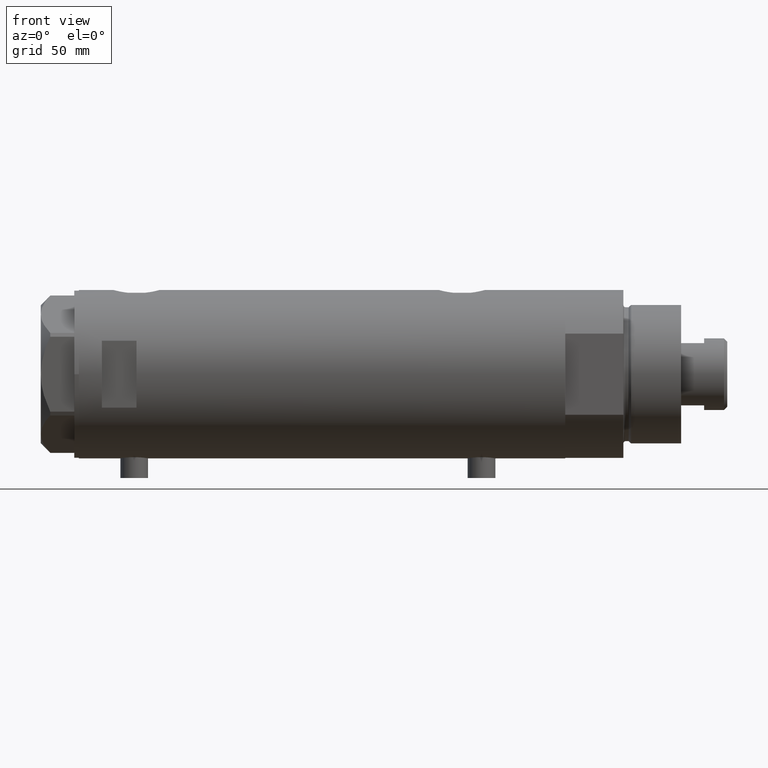
[diagram: clean part render]
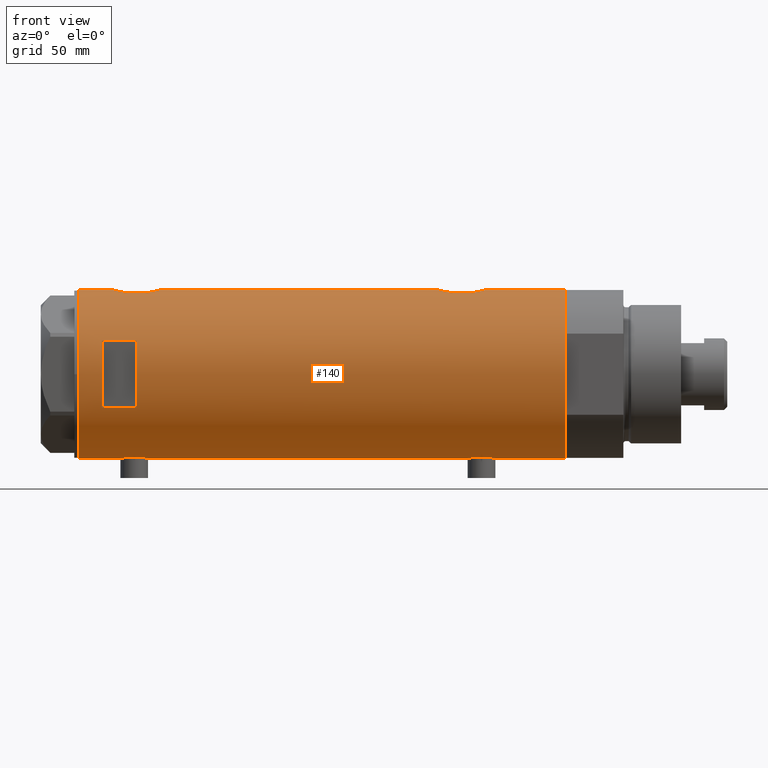
[diagram: same view with one face highlighted and labeled with its STEP entity id]
A machine part, front view. The second image highlights one B-rep face of the part: STEP entity #140.
In plain terms, the highlighted cylindrical surface (partial cylindrical patch) has radius 36.5 mm, axis along (-1, -0, 0).
Its self-contained STEP definition (entity closure, byte-faithful):
#2 = CARTESIAN_POINT ( 'NONE',  ( 35.39807338191550912, -8.909271871950332766, 85.05080382732786859 ) ) ;
#17 = VECTOR ( 'NONE', #2982, 1000.000000000000000 ) ;
#19 = CARTESIAN_POINT ( 'NONE',  ( 36.18850502651835654, -4.779575967213801846, -69.39779152890153568 ) ) ;
#23 = CARTESIAN_POINT ( 'NONE',  ( -36.49297138689433240, -0.8222528563518511913, 87.60933112053437810 ) ) ;
#28 = CARTESIAN_POINT ( 'NONE',  ( 36.09633718678917802, -5.417295330713079338, 88.80914867345211405 ) ) ;
#53 = CARTESIAN_POINT ( 'NONE',  ( 36.50000000000000000, 0.000000000000000000, 70.40000000000000568 ) ) ;
#72 = CARTESIAN_POINT ( 'NONE',  ( -36.30107494031872761, -3.820993528321232624, -64.13693846463692694 ) ) ;
#96 = CARTESIAN_POINT ( 'NONE',  ( -36.01675918113429020, -5.920026275461276910, -71.11439556517890992 ) ) ;
#122 = CARTESIAN_POINT ( 'NONE',  ( -36.40915499150419521, -2.580495338846545472, -74.79605013355477183 ) ) ;
#125 = CARTESIAN_POINT ( 'NONE',  ( 36.50000000000000000, 4.344614706140975428E-19, 90.39999999999999147 ) ) ;
#135 = CARTESIAN_POINT ( 'NONE',  ( 36.50000000000000000, 0.000000000000000000, 70.40000000000000568 ) ) ;
#140 = ADVANCED_FACE ( 'NONE', ( #3667, #4324 ), #2621, .T. ) ;
#150 = AXIS2_PLACEMENT_3D ( 'NONE', #2040, #357, #3752 ) ;
#157 = CARTESIAN_POINT ( 'NONE',  ( 35.72742963626382107, -7.471989379615396665, -67.25062260412778414 ) ) ;
#163 = CARTESIAN_POINT ( 'NONE',  ( -36.36656776002988067, -3.137002187003158582, 86.82136409273630306 ) ) ;
#173 = CARTESIAN_POINT ( 'NONE',  ( 36.50000000000000000, 0.000000000000000000, -105.4000000000000057 ) ) ;
#175 = CARTESIAN_POINT ( 'NONE',  ( 35.29999999999999716, -9.282241108697837362, 84.12021504754763157 ) ) ;
#179 = VERTEX_POINT ( 'NONE', #175 ) ;
#181 = VERTEX_POINT ( 'NONE', #1266 ) ;
#193 = CARTESIAN_POINT ( 'NONE',  ( -36.36635911126388976, -3.125815113635436404, 75.98394399592095283 ) ) ;
#211 = CARTESIAN_POINT ( 'NONE',  ( 35.93363298843768661, -6.415574104180961967, 72.71348527111108240 ) ) ;
#219 = CARTESIAN_POINT ( 'NONE',  ( 35.29999999999999716, -9.282241108697832033, -64.32021504754764862 ) ) ;
#230 = CARTESIAN_POINT ( 'NONE',  ( 0.000000000000000000, 0.000000000000000000, 95.40000000000001990 ) ) ;
#235 = CARTESIAN_POINT ( 'NONE',  ( 35.72583162417570435, -7.484316398521970726, -53.94957356280497862 ) ) ;
#238 = LINE ( 'NONE', #959, #3728 ) ;
#239 = CARTESIAN_POINT ( 'NONE',  ( -36.14410773716529235, -5.085921866747742826, 85.03835878420473193 ) ) ;
#311 = CARTESIAN_POINT ( 'NONE',  ( 36.44881677724179525, -1.995085670027224367, -70.41180345369464533 ) ) ;
#327 = EDGE_CURVE ( 'NONE', #2791, #2019, #3985, .T. ) ;
#346 = ORIENTED_EDGE ( 'NONE', *, *, #1277, .F. ) ;
#357 = DIRECTION ( 'NONE',  ( -0.000000000000000000, -4.625929269271492422E-15, 1.000000000000000000 ) ) ;
#372 = CARTESIAN_POINT ( 'NONE',  ( 35.83108131285855791, -6.958268797611344425, -67.78630783372827295 ) ) ;
#377 = VERTEX_POINT ( 'NONE', #3734 ) ;
#402 = CARTESIAN_POINT ( 'NONE',  ( 36.34247810649306842, -3.420510937483958624, 89.80986518401728347 ) ) ;
#407 = VERTEX_POINT ( 'NONE', #818 ) ;
#414 = CARTESIAN_POINT ( 'NONE',  ( 36.50000000000000000, 0.000000000000000000, -105.4000000000000057 ) ) ;
#440 = CARTESIAN_POINT ( 'NONE',  ( 35.52320828895290816, -8.411622242316136422, 74.90227134055386671 ) ) ;
#445 = CARTESIAN_POINT ( 'NONE',  ( -36.44454782745417276, -2.020757099930496903, -63.18214135579003710 ) ) ;
#467 = ORIENTED_EDGE ( 'NONE', *, *, #2245, .T. ) ;
#486 = CARTESIAN_POINT ( 'NONE',  ( 0.000000000000000000, 0.000000000000000000, -105.4000000000000057 ) ) ;
#487 = DIRECTION ( 'NONE',  ( 0.000000000000000000, 0.000000000000000000, 1.000000000000000000 ) ) ;
#491 = CARTESIAN_POINT ( 'NONE',  ( 36.50000000000000000, -0.5031001875915696031, 70.40000000000000568 ) ) ;
#498 = CARTESIAN_POINT ( 'NONE',  ( -35.99695583620882644, -6.039273428153906664, -70.72224444987757863 ) ) ;
#514 = CARTESIAN_POINT ( 'NONE',  ( 36.48960339336945680, -1.002724032967599488, 70.43775134026503792 ) ) ;
#515 = CARTESIAN_POINT ( 'NONE',  ( -36.02823773219769521, -5.849994928883552880, 79.19044898514358977 ) ) ;
#530 = AXIS2_PLACEMENT_3D ( 'NONE', #486, #1129, #2514 ) ;
#543 = CARTESIAN_POINT ( 'NONE',  ( 35.79656810172927806, -7.133411935499470502, 73.38745121442323693 ) ) ;
#565 = EDGE_CURVE ( 'NONE', #670, #2922, #4482, .T. ) ;
#579 = CARTESIAN_POINT ( 'NONE',  ( -36.49297138689433950, -0.8222528563518539668, -62.89066887946567874 ) ) ;
#601 = CARTESIAN_POINT ( 'NONE',  ( -35.96087392089863499, -6.250243747806518257, 81.80917490776184309 ) ) ;
#605 = CARTESIAN_POINT ( 'NONE',  ( -36.47262891311152799, -1.427622242603856506, -63.01175370788300256 ) ) ;
#622 = CARTESIAN_POINT ( 'NONE',  ( -36.19599073318030236, -4.702920041824403263, 85.52153831676578477 ) ) ;
#639 = CARTESIAN_POINT ( 'NONE',  ( 36.50000000000000000, 0.000000000000000000, -70.59999999999999432 ) ) ;
#644 = CARTESIAN_POINT ( 'NONE',  ( 35.52320828895290816, -8.411622242316138198, -66.09772865944611908 ) ) ;
#663 = CARTESIAN_POINT ( 'NONE',  ( 35.93363298843767240, -6.415574104180961079, -68.28651472888893181 ) ) ;
#670 = VERTEX_POINT ( 'NONE', #219 ) ;
#673 = VERTEX_POINT ( 'NONE', #3666 ) ;
#688 = CARTESIAN_POINT ( 'NONE',  ( 35.29999999999999716, -9.282241108697832033, 76.67978495245235138 ) ) ;
#702 = EDGE_CURVE ( 'NONE', #2662, #2922, #1519, .T. ) ;
#733 = DIRECTION ( 'NONE',  ( 0.000000000000000000, 0.000000000000000000, 1.000000000000000000 ) ) ;
#764 = CIRCLE ( 'NONE', #150, 36.50000000000000000 ) ;
#804 = CARTESIAN_POINT ( 'NONE',  ( -36.46614432713123222, -1.622933015999965090, -75.14966597386846558 ) ) ;
#818 = CARTESIAN_POINT ( 'NONE',  ( 35.29999999999999716, -9.282241108697837362, -56.87978495245236843 ) ) ;
#821 = CARTESIAN_POINT ( 'NONE',  ( -35.99659093586380010, -6.041447834568798747, -67.48577587985177217 ) ) ;
#826 = ORIENTED_EDGE ( 'NONE', *, *, #1629, .F. ) ;
#845 = ORIENTED_EDGE ( 'NONE', *, *, #2087, .F. ) ;
#869 = CARTESIAN_POINT ( 'NONE',  ( 36.44881677724178815, -1.995085670027225255, 70.58819654630536888 ) ) ;
#885 = CARTESIAN_POINT ( 'NONE',  ( 35.29999999999999716, -9.282241108697837362, -56.87978495245236843 ) ) ;
#911 = CARTESIAN_POINT ( 'NONE',  ( -36.06605150775666857, -5.613853192123346325, 78.62234311727455349 ) ) ;
#923 = EDGE_LOOP ( 'NONE', ( #3412, #467, #1530, #972, #1810, #3555, #3650, #346, #2226, #4451, #3774, #4435, #1319, #2250, #2686, #826 ) ) ;
#931 = CARTESIAN_POINT ( 'NONE',  ( 35.29999999999999716, -9.282241108697835585, -105.4000000000000057 ) ) ;
#940 = CARTESIAN_POINT ( 'NONE',  ( -36.40915499150420231, -2.580495338846545472, 75.70394986644525659 ) ) ;
#959 = CARTESIAN_POINT ( 'NONE',  ( 14.49137674618942562, -33.50000000000000000, -105.4000000000000057 ) ) ;
#963 = CARTESIAN_POINT ( 'NONE',  ( -36.09514898390870030, -5.426114745500156822, 84.52838652946140030 ) ) ;
#972 = ORIENTED_EDGE ( 'NONE', *, *, #565, .F. ) ;
#984 = CARTESIAN_POINT ( 'NONE',  ( -36.39558535855675103, -2.764807686268001330, 75.79105881454391636 ) ) ;
#987 = CARTESIAN_POINT ( 'NONE',  ( 14.49137674618942739, -33.50000000000000000, 95.40000000000001990 ) ) ;
#1076 = CARTESIAN_POINT ( 'NONE',  ( -36.47262891311152089, -1.427622242603850955, 87.48824629211701165 ) ) ;
#1080 = CARTESIAN_POINT ( 'NONE',  ( 35.29999999999999716, -9.282241108697837362, 84.12021504754763157 ) ) ;
#1089 = LINE ( 'NONE', #414, #3554 ) ;
#1091 = CARTESIAN_POINT ( 'NONE',  ( 36.34184199234172041, -3.427106516421252635, -70.00740913680033373 ) ) ;
#1125 = AXIS2_PLACEMENT_3D ( 'NONE', #2858, #4330, #3981 ) ;
#1129 = DIRECTION ( 'NONE',  ( 0.000000000000000000, 0.000000000000000000, 1.000000000000000000 ) ) ;
#1136 = CARTESIAN_POINT ( 'NONE',  ( 36.12724769814494152, -5.207618053557752980, 88.94064120488462777 ) ) ;
#1142 = CARTESIAN_POINT ( 'NONE',  ( -36.39621039793028956, -2.776267550998802847, -63.48569246893222129 ) ) ;
#1155 = CARTESIAN_POINT ( 'NONE',  ( -14.49137674618942562, -33.50000000000000000, -105.4000000000000057 ) ) ;
#1182 = CARTESIAN_POINT ( 'NONE',  ( 35.29999999999999716, -9.282241108697835585, -105.4000000000000057 ) ) ;
#1186 = CARTESIAN_POINT ( 'NONE',  ( -36.14410773716529235, -5.085921866747752595, -65.46164121579531070 ) ) ;
#1190 = CARTESIAN_POINT ( 'NONE',  ( -36.50000000000000000, 1.407447864834978200E-15, 87.65000000000000568 ) ) ;
#1192 = EDGE_CURVE ( 'NONE', #377, #3720, #1447, .T. ) ;
#1207 = CARTESIAN_POINT ( 'NONE',  ( 36.21540437201188922, -4.554727782332259167, -51.69402370911375755 ) ) ;
#1215 = CARTESIAN_POINT ( 'NONE',  ( -36.30176144752230982, -3.814344296723638728, -74.06801701950256245 ) ) ;
#1228 = DIRECTION ( 'NONE',  ( 0.000000000000000000, 0.000000000000000000, 1.000000000000000000 ) ) ;
#1233 = CARTESIAN_POINT ( 'NONE',  ( 36.41918031349423757, -2.473644131148925673, -50.89811654536808305 ) ) ;
#1237 = CARTESIAN_POINT ( 'NONE',  ( -35.98821803976956346, -6.090959022952118218, 82.81573883149420112 ) ) ;
#1241 = CARTESIAN_POINT ( 'NONE',  ( -36.19599073318029525, -4.702920041824404151, -64.97846168323422944 ) ) ;
#1258 = EDGE_CURVE ( 'NONE', #3858, #179, #2641, .T. ) ;
#1266 = CARTESIAN_POINT ( 'NONE',  ( -36.50000000000000000, 4.469960816887837641E-15, -105.4000000000000057 ) ) ;
#1277 = EDGE_CURVE ( 'NONE', #2129, #3014, #2427, .T. ) ;
#1279 = CARTESIAN_POINT ( 'NONE',  ( 35.69273631926343171, -7.635692914629146344, 73.93799804348510918 ) ) ;
#1281 = CARTESIAN_POINT ( 'NONE',  ( -35.99695583620881223, -6.039273428153904888, 79.77775555012243558 ) ) ;
#1284 = CARTESIAN_POINT ( 'NONE',  ( -36.50000000000000000, 4.469960493350315609E-15, -75.35000000000000853 ) ) ;
#1286 = VECTOR ( 'NONE', #2151, 1000.000000000000000 ) ;
#1301 = B_SPLINE_CURVE_WITH_KNOTS ( 'NONE', 3,
 ( #2635, #1578, #2223, #4310, #1233, #3612, #2937, #1207, #2886, #2296, #3965, #4284, #4349, #2986, #235, #3629, #1618, #885 ),
 .UNSPECIFIED., .F., .F.,
 ( 4, 2, 2, 2, 2, 2, 2, 2, 4 ),
 ( 0.01190956515753145185, 0.01339852714138290921, 0.01488748912523436482, 0.01637645110908582391, 0.01712093210101154825, 0.01786541309293727259, 0.01935437507678870739, 0.02084333706064014219, 0.02382126102834301873 ),
 .UNSPECIFIED. ) ;
#1307 = CARTESIAN_POINT ( 'NONE',  ( -36.16125812922425098, -4.962923794285023504, 85.20446085910759848 ) ) ;
#1313 = VERTEX_POINT ( 'NONE', #3922 ) ;
#1319 = ORIENTED_EDGE ( 'NONE', *, *, #3156, .F. ) ;
#1396 = VERTEX_POINT ( 'NONE', #2993 ) ;
#1404 = CARTESIAN_POINT ( 'NONE',  ( 36.41856252531823657, -2.482507212621166026, -70.29956512846504779 ) ) ;
#1409 = LINE ( 'NONE', #2489, #1286 ) ;
#1431 = CARTESIAN_POINT ( 'NONE',  ( 35.72583162417569724, -7.484316398521979607, 87.05042643719500006 ) ) ;
#1447 = LINE ( 'NONE', #1155, #2358 ) ;
#1475 = DIRECTION ( 'NONE',  ( 0.000000000000000000, 0.000000000000000000, 1.000000000000000000 ) ) ;
#1495 = CARTESIAN_POINT ( 'NONE',  ( -36.39558535855672972, -2.764807686268001774, -74.70894118545611207 ) ) ;
#1503 = LINE ( 'NONE', #2532, #2416 ) ;
#1512 = CARTESIAN_POINT ( 'NONE',  ( -35.96794010939611752, -6.209972807992079069, -68.28444451008647320 ) ) ;
#1519 = LINE ( 'NONE', #173, #4014 ) ;
#1530 = ORIENTED_EDGE ( 'NONE', *, *, #702, .T. ) ;
#1542 = EDGE_CURVE ( 'NONE', #1313, #3014, #1089, .T. ) ;
#1543 = DIRECTION ( 'NONE',  ( 0.000000000000000000, 0.000000000000000000, 1.000000000000000000 ) ) ;
#1554 = VECTOR ( 'NONE', #2111, 1000.000000000000000 ) ;
#1556 = CARTESIAN_POINT ( 'NONE',  ( 36.34184199234172041, -3.427106516421252635, 70.99259086319966627 ) ) ;
#1566 = DIRECTION ( 'NONE',  ( 0.000000000000000000, 0.000000000000000000, 1.000000000000000000 ) ) ;
#1578 = CARTESIAN_POINT ( 'NONE',  ( 36.50000000000000000, -0.4962708696651109141, -50.60000000000000853 ) ) ;
#1581 = CARTESIAN_POINT ( 'NONE',  ( -36.01675918113430441, -5.920026275461276910, 79.38560443482106166 ) ) ;
#1600 = CARTESIAN_POINT ( 'NONE',  ( -36.49315367594273596, -0.8144497809045445624, 75.18960214445246493 ) ) ;
#1618 = CARTESIAN_POINT ( 'NONE',  ( 35.39807338191550912, -8.909271871950334543, -55.94919617267213852 ) ) ;
#1629 = EDGE_CURVE ( 'NONE', #3673, #673, #3873, .T. ) ;
#1644 = CARTESIAN_POINT ( 'NONE',  ( -36.26616882068469749, -4.135065845178862887, 86.10415055940092088 ) ) ;
#1737 = CARTESIAN_POINT ( 'NONE',  ( 36.48960339336945680, -1.002724032967600598, -70.56224865973496208 ) ) ;
#1744 = CIRCLE ( 'NONE', #530, 36.50000000000000000 ) ;
#1772 = CARTESIAN_POINT ( 'NONE',  ( 36.29582892817134621, -3.881628320031161650, 89.62934434534990658 ) ) ;
#1793 = CARTESIAN_POINT ( 'NONE',  ( -36.09582946723050867, -5.421573071064194060, -72.23608278370490154 ) ) ;
#1810 = ORIENTED_EDGE ( 'NONE', *, *, #3460, .T. ) ;
#1811 = LINE ( 'NONE', #1182, #1554 ) ;
#1816 = CARTESIAN_POINT ( 'NONE',  ( -36.46417279006303858, -1.628689148039111245, -63.06246061306185169 ) ) ;
#1843 = CARTESIAN_POINT ( 'NONE',  ( -36.49315367594275017, -0.8144497809045466719, -75.31039785554756349 ) ) ;
#1851 = LINE ( 'NONE', #3675, #17 ) ;
#1859 = CARTESIAN_POINT ( 'NONE',  ( 36.18850502651836365, -4.779575967213802734, 71.60220847109845010 ) ) ;
#1865 = CARTESIAN_POINT ( 'NONE',  ( -35.96095902952617251, -6.249754054240902690, -69.51658765420471298 ) ) ;
#1883 = CARTESIAN_POINT ( 'NONE',  ( -36.30107494031871340, -3.820993528321230848, 86.36306153536308727 ) ) ;
#1887 = CARTESIAN_POINT ( 'NONE',  ( -36.16125812922422966, -4.962923794285019952, -65.29553914089238731 ) ) ;
#1904 = LINE ( 'NONE', #931, #3272 ) ;
#1910 = CARTESIAN_POINT ( 'NONE',  ( -36.46614432713122511, -1.622933015999963535, 75.35033402613152020 ) ) ;
#1957 = CARTESIAN_POINT ( 'NONE',  ( -36.06543684817881257, -5.617774235967358365, 84.16954447971703246 ) ) ;
#1970 = DIRECTION ( 'NONE',  ( 0.000000000000000000, 0.000000000000000000, 1.000000000000000000 ) ) ;
#1979 = CARTESIAN_POINT ( 'NONE',  ( -36.50000000000000000, 4.469960493350315609E-15, 75.14999999999999147 ) ) ;
#2019 = VERTEX_POINT ( 'NONE', #1190 ) ;
#2040 = CARTESIAN_POINT ( 'NONE',  ( 0.000000000000000000, 0.000000000000000000, 80.40000000000017621 ) ) ;
#2087 = EDGE_CURVE ( 'NONE', #3720, #4461, #764, .T. ) ;
#2089 = CARTESIAN_POINT ( 'NONE',  ( 35.29999999999999716, -9.282241108697832033, 76.67978495245235138 ) ) ;
#2111 = DIRECTION ( 'NONE',  ( 0.000000000000000000, 0.000000000000000000, 1.000000000000000000 ) ) ;
#2129 = VERTEX_POINT ( 'NONE', #688 ) ;
#2137 = CARTESIAN_POINT ( 'NONE',  ( -35.98855750525640929, -6.088954600884531665, -70.52430226150165993 ) ) ;
#2151 = DIRECTION ( 'NONE',  ( 0.000000000000000000, 0.000000000000000000, 1.000000000000000000 ) ) ;
#2153 = CARTESIAN_POINT ( 'NONE',  ( 35.39794035667547689, -8.909777761736840773, 75.75045840910546247 ) ) ;
#2158 = CARTESIAN_POINT ( 'NONE',  ( -35.98821803976956346, -6.090959022952116442, -67.68426116850582730 ) ) ;
#2173 = CARTESIAN_POINT ( 'NONE',  ( 36.50000000000002132, -0.4962708696651109141, 90.40000000000001990 ) ) ;
#2223 = CARTESIAN_POINT ( 'NONE',  ( 36.48988302519020976, -0.9927202255321156965, -50.63673010588698986 ) ) ;
#2225 = CARTESIAN_POINT ( 'NONE',  ( 36.12792682573227410, -5.214735277442327899, 71.85306882011298057 ) ) ;
#2226 = ORIENTED_EDGE ( 'NONE', *, *, #4440, .T. ) ;
#2232 = CARTESIAN_POINT ( 'NONE',  ( -35.96087392089863499, -6.250243747806517369, -68.69082509223819955 ) ) ;
#2245 = EDGE_CURVE ( 'NONE', #181, #2662, #1744, .T. ) ;
#2250 = ORIENTED_EDGE ( 'NONE', *, *, #327, .F. ) ;
#2270 = CARTESIAN_POINT ( 'NONE',  ( 35.72742963626382107, -7.471989379615396665, 73.74937739587224428 ) ) ;
#2271 = CARTESIAN_POINT ( 'NONE',  ( -36.01639592019626690, -5.922235714778416593, 83.40796802426915235 ) ) ;
#2283 = DIRECTION ( 'NONE',  ( 1.000000000000000000, 0.000000000000000000, 0.000000000000000000 ) ) ;
#2296 = CARTESIAN_POINT ( 'NONE',  ( 36.12724769814494863, -5.207618053557752091, -52.05935879511539355 ) ) ;
#2299 = CARTESIAN_POINT ( 'NONE',  ( -36.19666146462961365, -4.704890678739094945, 77.26570140489216953 ) ) ;
#2342 = CARTESIAN_POINT ( 'NONE',  ( -36.16096637594733210, -4.968588355849259841, 77.58665507182242038 ) ) ;
#2358 = VECTOR ( 'NONE', #2493, 1000.000000000000000 ) ;
#2363 = CARTESIAN_POINT ( 'NONE',  ( 35.79656810172927806, -7.133411935499470502, -67.61254878557679149 ) ) ;
#2408 = CARTESIAN_POINT ( 'NONE',  ( -36.50000000000000000, -0.4136690418839316097, -62.85000000000000142 ) ) ;
#2412 = CARTESIAN_POINT ( 'NONE',  ( -14.49137674618942739, -33.50000000000000000, 80.40000000000003411 ) ) ;
#2414 = CARTESIAN_POINT ( 'NONE',  ( -36.50000000000000000, 1.407447864834978200E-15, 87.65000000000000568 ) ) ;
#2415 = ORIENTED_EDGE ( 'NONE', *, *, #1192, .F. ) ;
#2416 = VECTOR ( 'NONE', #1228, 1000.000000000000000 ) ;
#2427 = B_SPLINE_CURVE_WITH_KNOTS ( 'NONE', 3,
 ( #2089, #2153, #440, #1279, #2270, #543, #3294, #211, #2863, #2225, #1859, #4018, #1556, #4352, #869, #514, #491, #135 ),
 .UNSPECIFIED., .F., .F.,
 ( 4, 2, 2, 2, 2, 2, 2, 2, 4 ),
 ( -0.01189883390545605317, -0.008924125429092049852, -0.008180448310001047288, -0.007436771190910044724, -0.005949416952728036993, -0.004462062714546029263, -0.002974708476364020665, -0.001487354238182010333, -1.734723475976807094E-18 ),
 .UNSPECIFIED. ) ;
#2437 = CARTESIAN_POINT ( 'NONE',  ( -36.50000000000000000, -0.4136690418839331640, 87.65000000000000568 ) ) ;
#2475 = CARTESIAN_POINT ( 'NONE',  ( 36.48988302519020266, -0.9927202255321175839, 90.36326989411300303 ) ) ;
#2489 = CARTESIAN_POINT ( 'NONE',  ( -36.50000000000000000, 4.469960816887837641E-15, -105.4000000000000057 ) ) ;
#2493 = DIRECTION ( 'NONE',  ( -0.000000000000000000, -0.000000000000000000, -1.000000000000000000 ) ) ;
#2514 = DIRECTION ( 'NONE',  ( 1.000000000000000000, 0.000000000000000000, 0.000000000000000000 ) ) ;
#2520 = CARTESIAN_POINT ( 'NONE',  ( -36.19666146462961365, -4.704890678739095833, -73.23429859510785889 ) ) ;
#2532 = CARTESIAN_POINT ( 'NONE',  ( -36.50000000000000000, 4.469960816887837641E-15, -105.4000000000000057 ) ) ;
#2546 = CIRCLE ( 'NONE', #1125, 36.50000000000000000 ) ;
#2575 = CARTESIAN_POINT ( 'NONE',  ( -36.26692673949092693, -4.128477002029505627, -73.80999987432171849 ) ) ;
#2595 = CARTESIAN_POINT ( 'NONE',  ( -36.26616882068470460, -4.135065845178866439, -64.39584944059907912 ) ) ;
#2610 = CARTESIAN_POINT ( 'NONE',  ( -36.30176144752230982, -3.814344296723637839, 76.43198298049743755 ) ) ;
#2615 = CARTESIAN_POINT ( 'NONE',  ( -36.50000000000000000, -5.849986204104554638E-16, -62.85000000000000142 ) ) ;
#2621 = CYLINDRICAL_SURFACE ( 'NONE', #3065, 36.50000000000000000 ) ;
#2635 = CARTESIAN_POINT ( 'NONE',  ( 36.50000000000000000, 4.344609657431182014E-19, -50.60000000000000853 ) ) ;
#2641 = B_SPLINE_CURVE_WITH_KNOTS ( 'NONE', 3,
 ( #3494, #2173, #2475, #3564, #3519, #402, #1772, #2820, #4225, #1136, #28, #3472, #3105, #3876, #1431, #3539, #2, #1080 ),
 .UNSPECIFIED., .F., .F.,
 ( 4, 2, 2, 2, 2, 2, 2, 2, 4 ),
 ( 0.01190956515753145012, 0.01339852714138288839, 0.01488748912523432666, 0.01637645110908576493, 0.01712093210101148233, 0.01786541309293720320, 0.01935437507678866575, 0.02084333706064012831, 0.02382126102834302220 ),
 .UNSPECIFIED. ) ;
#2662 = VERTEX_POINT ( 'NONE', #2931 ) ;
#2686 = ORIENTED_EDGE ( 'NONE', *, *, #3103, .F. ) ;
#2757 = CARTESIAN_POINT ( 'NONE',  ( 36.50000000000000000, -0.5031001875915691590, -70.59999999999999432 ) ) ;
#2760 = CARTESIAN_POINT ( 'NONE',  ( -36.43335814606992074, -2.212659578761320134, 87.24876399169507124 ) ) ;
#2783 = CARTESIAN_POINT ( 'NONE',  ( 36.50000000000000000, 0.000000000000000000, 105.4000000000000057 ) ) ;
#2791 = VERTEX_POINT ( 'NONE', #4238 ) ;
#2820 = CARTESIAN_POINT ( 'NONE',  ( 36.21540437201187501, -4.554727782332259167, 89.30597629088620693 ) ) ;
#2828 = CARTESIAN_POINT ( 'NONE',  ( -36.36656776002988067, -3.137002187003159914, -63.67863590726370404 ) ) ;
#2831 = VECTOR ( 'NONE', #733, 1000.000000000000000 ) ;
#2834 = CIRCLE ( 'NONE', #4084, 36.50000000000000000 ) ;
#2853 = CARTESIAN_POINT ( 'NONE',  ( -36.50000000000000000, 4.469960493350315609E-15, -75.35000000000000853 ) ) ;
#2858 = CARTESIAN_POINT ( 'NONE',  ( 0.000000000000000000, 0.000000000000000000, 105.4000000000000057 ) ) ;
#2863 = CARTESIAN_POINT ( 'NONE',  ( 36.00068527486601511, -6.030855700422084631, 72.40798672872645625 ) ) ;
#2867 = CARTESIAN_POINT ( 'NONE',  ( -36.21356728133256553, -4.566014386638764577, -64.82737339235256968 ) ) ;
#2886 = CARTESIAN_POINT ( 'NONE',  ( 36.18674680775578167, -4.776679548204626258, -51.81107683068754000 ) ) ;
#2895 = CARTESIAN_POINT ( 'NONE',  ( -36.36635911126387555, -3.125815113635437292, -74.51605600407904717 ) ) ;
#2922 = VERTEX_POINT ( 'NONE', #639 ) ;
#2926 = CARTESIAN_POINT ( 'NONE',  ( -36.35061318816140385, -3.303361544904981795, -74.40964041943017548 ) ) ;
#2931 = CARTESIAN_POINT ( 'NONE',  ( 36.50000000000000000, 0.000000000000000000, -105.4000000000000057 ) ) ;
#2937 = CARTESIAN_POINT ( 'NONE',  ( 36.29582892817134621, -3.881628320031160317, -51.37065565465011474 ) ) ;
#2940 = CARTESIAN_POINT ( 'NONE',  ( -36.09582946723050156, -5.421573071064194949, 78.26391721629516951 ) ) ;
#2961 = CARTESIAN_POINT ( 'NONE',  ( -36.44621655743048905, -2.016281777336075276, 75.47017023300884375 ) ) ;
#2982 = DIRECTION ( 'NONE',  ( 0.000000000000000000, 0.000000000000000000, 1.000000000000000000 ) ) ;
#2986 = CARTESIAN_POINT ( 'NONE',  ( 35.79638309643554805, -7.141827709208433461, -53.58298073030452713 ) ) ;
#2993 = CARTESIAN_POINT ( 'NONE',  ( -36.50000000000000000, 4.469960816887837641E-15, 105.4000000000000057 ) ) ;
#3012 = CARTESIAN_POINT ( 'NONE',  ( 35.29999999999999716, -9.282241108697832033, -64.32021504754764862 ) ) ;
#3014 = VERTEX_POINT ( 'NONE', #53 ) ;
#3032 = DIRECTION ( 'NONE',  ( 1.000000000000000000, 0.000000000000000000, 0.000000000000000000 ) ) ;
#3065 = AXIS2_PLACEMENT_3D ( 'NONE', #3976, #1543, #2283 ) ;
#3100 = CARTESIAN_POINT ( 'NONE',  ( 36.12792682573229541, -5.214735277442327011, -69.14693117988701943 ) ) ;
#3103 = EDGE_CURVE ( 'NONE', #673, #2791, #1503, .T. ) ;
#3105 = CARTESIAN_POINT ( 'NONE',  ( 35.93373217836898448, -6.415110096330618461, 88.08704266355093182 ) ) ;
#3106 = EDGE_CURVE ( 'NONE', #1396, #3756, #2546, .T. ) ;
#3121 = CARTESIAN_POINT ( 'NONE',  ( 36.00068527486600800, -6.030855700422084631, -68.59201327127354375 ) ) ;
#3125 = CARTESIAN_POINT ( 'NONE',  ( -36.44454782745417987, -2.020757099930490686, 87.31785864421000554 ) ) ;
#3156 = EDGE_CURVE ( 'NONE', #2019, #1396, #1851, .T. ) ;
#3169 = CARTESIAN_POINT ( 'NONE',  ( -35.96816095843705341, -6.208699946936202529, -69.92496377127788776 ) ) ;
#3175 = EDGE_LOOP ( 'NONE', ( #845, #2415, #3321, #3387 ) ) ;
#3179 = CARTESIAN_POINT ( 'NONE',  ( 36.50000000000000000, 0.000000000000000000, -70.59999999999999432 ) ) ;
#3193 = CARTESIAN_POINT ( 'NONE',  ( -36.02823773219769521, -5.849994928883553769, -71.30955101485646708 ) ) ;
#3207 = EDGE_CURVE ( 'NONE', #1313, #407, #1301, .T. ) ;
#3240 = CARTESIAN_POINT ( 'NONE',  ( -36.06605150775667568, -5.613853192123348101, -71.87765688272543230 ) ) ;
#3254 = CARTESIAN_POINT ( 'NONE',  ( 35.69273631926343171, -7.635692914629146344, -67.06200195651491924 ) ) ;
#3272 = VECTOR ( 'NONE', #487, 1000.000000000000000 ) ;
#3294 = CARTESIAN_POINT ( 'NONE',  ( 35.83108131285855791, -6.958268797611344425, 73.21369216627172705 ) ) ;
#3321 = ORIENTED_EDGE ( 'NONE', *, *, #4052, .F. ) ;
#3358 = DIRECTION ( 'NONE',  ( -0.000000000000000000, 0.000000000000000000, -1.000000000000000000 ) ) ;
#3364 = CARTESIAN_POINT ( 'NONE',  ( -36.21356728133256553, -4.566014386638763689, 85.67262660764747295 ) ) ;
#3387 = ORIENTED_EDGE ( 'NONE', *, *, #4033, .F. ) ;
#3412 = ORIENTED_EDGE ( 'NONE', *, *, #4222, .F. ) ;
#3454 = LINE ( 'NONE', #3815, #2831 ) ;
#3460 = EDGE_CURVE ( 'NONE', #670, #407, #1904, .T. ) ;
#3472 = CARTESIAN_POINT ( 'NONE',  ( 36.00092304812866928, -6.029438422680415854, 88.39308155573650083 ) ) ;
#3494 = CARTESIAN_POINT ( 'NONE',  ( 36.50000000000000000, 4.344614706140975428E-19, 90.39999999999999147 ) ) ;
#3519 = CARTESIAN_POINT ( 'NONE',  ( 36.41918031349424467, -2.473644131148923009, 90.10188345463190274 ) ) ;
#3539 = CARTESIAN_POINT ( 'NONE',  ( 35.52323553852026805, -8.411295122831251803, 85.89752392951088211 ) ) ;
#3546 = CARTESIAN_POINT ( 'NONE',  ( -36.43335814606992784, -2.212659578761321022, -63.25123600830491455 ) ) ;
#3554 = VECTOR ( 'NONE', #1475, 1000.000000000000000 ) ;
#3555 = ORIENTED_EDGE ( 'NONE', *, *, #3207, .F. ) ;
#3564 = CARTESIAN_POINT ( 'NONE',  ( 36.44931971524466263, -1.985988150549296671, 90.21366860531762200 ) ) ;
#3570 = CARTESIAN_POINT ( 'NONE',  ( -36.16096637594731078, -4.968588355849257177, -72.91334492817756541 ) ) ;
#3598 = CARTESIAN_POINT ( 'NONE',  ( -36.44621655743050326, -2.016281777336077052, -75.02982976699117046 ) ) ;
#3612 = CARTESIAN_POINT ( 'NONE',  ( 36.34247810649306132, -3.420510937483960845, -51.19013481598272364 ) ) ;
#3615 = VERTEX_POINT ( 'NONE', #987 ) ;
#3629 = CARTESIAN_POINT ( 'NONE',  ( 35.52323553852026095, -8.411295122831242921, -55.10247607048913210 ) ) ;
#3650 = ORIENTED_EDGE ( 'NONE', *, *, #1542, .T. ) ;
#3659 = CARTESIAN_POINT ( 'NONE',  ( -36.02782481185206365, -5.852531070448502959, 83.60277008952189703 ) ) ;
#3666 = CARTESIAN_POINT ( 'NONE',  ( -36.50000000000000000, -5.849986204104554638E-16, -62.85000000000000142 ) ) ;
#3667 = FACE_OUTER_BOUND ( 'NONE', #923, .T. ) ;
#3673 = VERTEX_POINT ( 'NONE', #1284 ) ;
#3675 = CARTESIAN_POINT ( 'NONE',  ( -36.50000000000000000, 4.469960816887837641E-15, -105.4000000000000057 ) ) ;
#3682 = CARTESIAN_POINT ( 'NONE',  ( -35.96794010939611752, -6.209972807992079957, 82.21555548991356943 ) ) ;
#3705 = CARTESIAN_POINT ( 'NONE',  ( -35.96095902952617251, -6.249754054240901802, 80.98341234579530123 ) ) ;
#3720 = VERTEX_POINT ( 'NONE', #2412 ) ;
#3726 = EDGE_CURVE ( 'NONE', #3858, #3756, #3454, .T. ) ;
#3727 = CARTESIAN_POINT ( 'NONE',  ( 35.39794035667549821, -8.909777761736844326, -65.24954159089455175 ) ) ;
#3728 = VECTOR ( 'NONE', #1970, 1000.000000000000000 ) ;
#3734 = CARTESIAN_POINT ( 'NONE',  ( -14.49137674618942739, -33.50000000000000000, 95.40000000000001990 ) ) ;
#3739 = CARTESIAN_POINT ( 'NONE',  ( 36.29527920868844149, -3.886508670267136090, -69.82716275830863140 ) ) ;
#3752 = DIRECTION ( 'NONE',  ( 1.776356839400250465E-15, 1.000000000000000000, 4.562560375171875891E-15 ) ) ;
#3756 = VERTEX_POINT ( 'NONE', #2783 ) ;
#3774 = ORIENTED_EDGE ( 'NONE', *, *, #3726, .T. ) ;
#3815 = CARTESIAN_POINT ( 'NONE',  ( 36.50000000000000000, 0.000000000000000000, -105.4000000000000057 ) ) ;
#3858 = VERTEX_POINT ( 'NONE', #125 ) ;
#3873 = B_SPLINE_CURVE_WITH_KNOTS ( 'NONE', 3,
 ( #2853, #3953, #1843, #804, #3598, #122, #1495, #2895, #2926, #1215, #2575, #2520, #3570, #1793, #3240, #3193, #96, #498, #2137, #3169, #1865, #2232, #1512, #2158, #821, #3928, #4318, #4267, #4231, #1186, #1887, #1241, #2867, #2595, #72, #2828, #1142, #3546, #445, #1816, #605, #579, #2408, #2615 ),
 .UNSPECIFIED., .F., .F.,
 ( 4, 2, 2, 2, 2, 2, 2, 2, 2, 2, 2, 2, 2, 2, 2, 2, 2, 2, 2, 2, 2, 4 ),
 ( 0.01957644481942642095, 0.02079966591703045695, 0.02202288701463449294, 0.02263449756343650573, 0.02324610811223851506, 0.02446932920984253371, 0.02569255030744655582, 0.02691577140505057447, 0.02752738195385256298, 0.02813899250265455843, 0.02936221360025857707, 0.03058543469786260266, 0.03119704524666461198, 0.03180865579546662825, 0.03303187689307068159, 0.03364348744187269785, 0.03425509799067470718, 0.03547831908827873970, 0.03670154018588277223, 0.03731315073468478849, 0.03792476128348680475, 0.03914798238109083034 ),
 .UNSPECIFIED. ) ;
#3876 = CARTESIAN_POINT ( 'NONE',  ( 35.79638309643554805, -7.141827709208433461, 87.41701926969550129 ) ) ;
#3922 = CARTESIAN_POINT ( 'NONE',  ( 36.50000000000000000, 4.344609657431182014E-19, -50.60000000000000853 ) ) ;
#3928 = CARTESIAN_POINT ( 'NONE',  ( -36.01639592019627401, -5.922235714778421034, -67.09203197573087607 ) ) ;
#3953 = CARTESIAN_POINT ( 'NONE',  ( -36.50000000000000000, -0.4082012689449570075, -75.35000000000000853 ) ) ;
#3965 = CARTESIAN_POINT ( 'NONE',  ( 36.09633718678916381, -5.417295330713082002, -52.19085132654786463 ) ) ;
#3968 = CARTESIAN_POINT ( 'NONE',  ( -36.39621039793029666, -2.776267550998800182, 87.01430753106777161 ) ) ;
#3976 = CARTESIAN_POINT ( 'NONE',  ( 0.000000000000000000, 0.000000000000000000, -105.4000000000000057 ) ) ;
#3981 = DIRECTION ( 'NONE',  ( 1.000000000000000000, 0.000000000000000000, 0.000000000000000000 ) ) ;
#3985 = B_SPLINE_CURVE_WITH_KNOTS ( 'NONE', 3,
 ( #1979, #4379, #1600, #1910, #2961, #940, #984, #193, #4313, #2610, #4354, #2299, #2342, #2940, #911, #515, #1581, #1281, #4040, #4339, #3705, #601, #3682, #1237, #3992, #2271, #3659, #1957, #963, #239, #1307, #622, #3364, #1644, #1883, #163, #3968, #2760, #3125, #4156, #1076, #23, #2437, #2414 ),
 .UNSPECIFIED., .F., .F.,
 ( 4, 2, 2, 2, 2, 2, 2, 2, 2, 2, 2, 2, 2, 2, 2, 2, 2, 2, 2, 2, 2, 4 ),
 ( 0.01957644481942642095, 0.02079966591703042919, 0.02202288701463443396, 0.02263449756343643635, 0.02324610811223844220, 0.02446932920984244697, 0.02569255030744645174, 0.02691577140505045651, 0.02752738195385245890, 0.02813899250265446475, 0.02936221360025851115, 0.03058543469786256103, 0.03119704524666458423, 0.03180865579546660743, 0.03303187689307068853, 0.03364348744187271173, 0.03425509799067473493, 0.03547831908827876746, 0.03670154018588278610, 0.03731315073468480237, 0.03792476128348681169, 0.03914798238109083728 ),
 .UNSPECIFIED. ) ;
#3992 = CARTESIAN_POINT ( 'NONE',  ( -35.99659093586380010, -6.041447834568794306, 83.01422412014827046 ) ) ;
#4014 = VECTOR ( 'NONE', #1566, 1000.000000000000000 ) ;
#4018 = CARTESIAN_POINT ( 'NONE',  ( 36.29527920868845570, -3.886508670267136978, 71.17283724169138281 ) ) ;
#4033 = EDGE_CURVE ( 'NONE', #4461, #3615, #238, .T. ) ;
#4040 = CARTESIAN_POINT ( 'NONE',  ( -35.98855750525640929, -6.088954600884529000, 79.97569773849832586 ) ) ;
#4052 = EDGE_CURVE ( 'NONE', #3615, #377, #2834, .T. ) ;
#4084 = AXIS2_PLACEMENT_3D ( 'NONE', #230, #3358, #3032 ) ;
#4156 = CARTESIAN_POINT ( 'NONE',  ( -36.46417279006303858, -1.628689148039105028, 87.43753938693819805 ) ) ;
#4205 = CARTESIAN_POINT ( 'NONE',  ( 14.49137674618942739, -33.50000000000000000, 80.40000000000003411 ) ) ;
#4222 = EDGE_CURVE ( 'NONE', #181, #3673, #1409, .T. ) ;
#4225 = CARTESIAN_POINT ( 'NONE',  ( 36.18674680775578167, -4.776679548204628034, 89.18892316931248843 ) ) ;
#4231 = CARTESIAN_POINT ( 'NONE',  ( -36.09514898390869320, -5.426114745500165704, -65.97161347053858549 ) ) ;
#4238 = CARTESIAN_POINT ( 'NONE',  ( -36.50000000000000000, 4.469960493350315609E-15, 75.14999999999999147 ) ) ;
#4267 = CARTESIAN_POINT ( 'NONE',  ( -36.06543684817881257, -5.617774235967366359, -66.33045552028299596 ) ) ;
#4284 = CARTESIAN_POINT ( 'NONE',  ( 36.00092304812866928, -6.029438422680417631, -52.60691844426350627 ) ) ;
#4310 = CARTESIAN_POINT ( 'NONE',  ( 36.44931971524464842, -1.985988150549292897, -50.78633139468235669 ) ) ;
#4313 = CARTESIAN_POINT ( 'NONE',  ( -36.35061318816141807, -3.303361544904982239, 76.09035958056981030 ) ) ;
#4318 = CARTESIAN_POINT ( 'NONE',  ( -36.02782481185206365, -5.852531070448510953, -66.89722991047813139 ) ) ;
#4324 = FACE_BOUND ( 'NONE', #3175, .T. ) ;
#4330 = DIRECTION ( 'NONE',  ( 0.000000000000000000, 0.000000000000000000, 1.000000000000000000 ) ) ;
#4339 = CARTESIAN_POINT ( 'NONE',  ( -35.96816095843706051, -6.208699946936200753, 80.57503622872214066 ) ) ;
#4349 = CARTESIAN_POINT ( 'NONE',  ( 35.93373217836897737, -6.415110096330618461, -52.91295733644908239 ) ) ;
#4352 = CARTESIAN_POINT ( 'NONE',  ( 36.41856252531824367, -2.482507212621164694, 70.70043487153495221 ) ) ;
#4354 = CARTESIAN_POINT ( 'NONE',  ( -36.26692673949091983, -4.128477002029504739, 76.69000012567835256 ) ) ;
#4379 = CARTESIAN_POINT ( 'NONE',  ( -36.50000000000000000, -0.4082012689449558418, 75.15000000000001990 ) ) ;
#4435 = ORIENTED_EDGE ( 'NONE', *, *, #3106, .F. ) ;
#4440 = EDGE_CURVE ( 'NONE', #2129, #179, #1811, .T. ) ;
#4451 = ORIENTED_EDGE ( 'NONE', *, *, #1258, .F. ) ;
#4461 = VERTEX_POINT ( 'NONE', #4205 ) ;
#4482 = B_SPLINE_CURVE_WITH_KNOTS ( 'NONE', 3,
 ( #3012, #3727, #644, #3254, #157, #2363, #372, #663, #3121, #3100, #19, #3739, #1091, #1404, #311, #1737, #2757, #3179 ),
 .UNSPECIFIED., .F., .F.,
 ( 4, 2, 2, 2, 2, 2, 2, 2, 4 ),
 ( -0.01189883390545605317, -0.008924125429092051587, -0.008180448310001049023, -0.007436771190910045591, -0.005949416952728037861, -0.004462062714546030130, -0.002974708476364020665, -0.001487354238182012067, -1.734723475976807094E-18 ),
 .UNSPECIFIED. ) ;